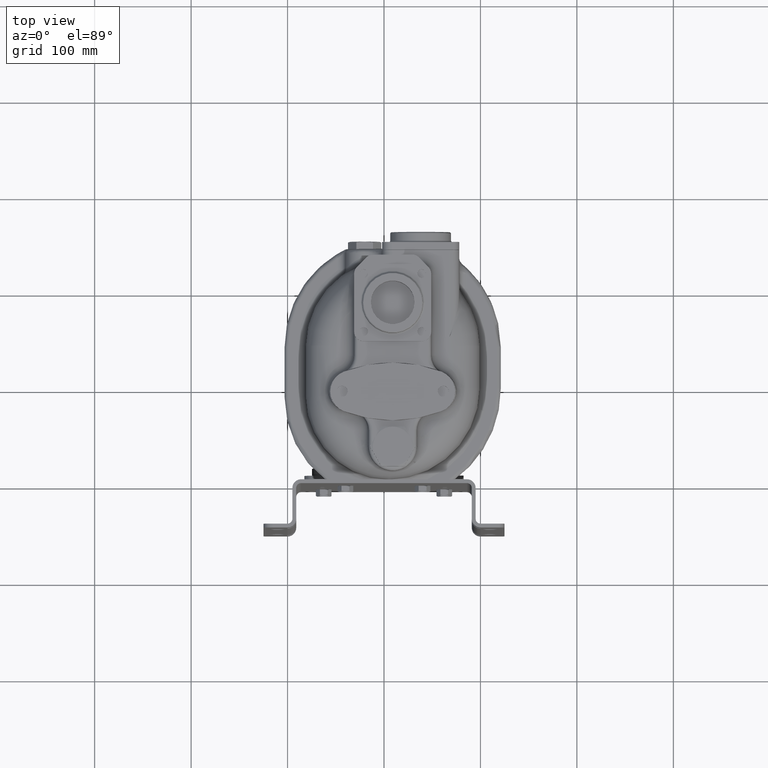
[diagram: clean part render]
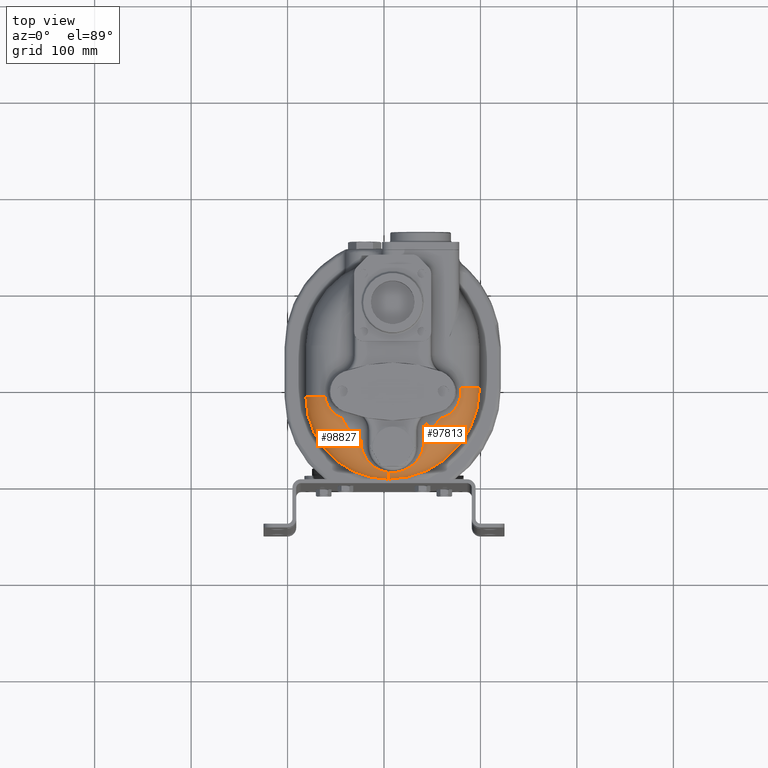
[diagram: same view with one multi-face feature highlighted, each face labeled with its STEP entity id]
A machine part, top view. The highlighted faces form ONE feature: a constant-radius fillet chain: 2 tangent blend faces with common blend radius 32 mm. The faces share edges in the B-rep.
Their STEP definitions:
[1] entity #98827 (Torus):
#37631=CARTESIAN_POINT('',(4.5E0,8.55E1,1.688E2));
#37632=DIRECTION('',(0.E0,0.E0,1.E0));
#37633=DIRECTION('',(-1.E0,0.E0,0.E0));
#37634=AXIS2_PLACEMENT_3D('',#37631,#37632,#37633);
#38514=CARTESIAN_POINT('',(4.5E0,3.2E1,1.688E2));
#38515=DIRECTION('',(1.E0,0.E0,0.E0));
#38516=DIRECTION('',(0.E0,-7.922935519139E-1,6.101400885007E-1));
#38517=AXIS2_PLACEMENT_3D('',#38514,#38515,#38516);
#38576=CARTESIAN_POINT('',(4.5E0,6.646606338756E0,1.883244828320E2));
#39444=CARTESIAN_POINT('',(-2.340488293308E1,3.409626828118E1,
2.004086144036E2));
#39445=CARTESIAN_POINT('',(-2.343960512505E1,3.448498931119E1,
2.004599268214E2));
#39446=CARTESIAN_POINT('',(-2.351111410970E1,3.527308822174E1,
2.005531810197E2));
#39447=CARTESIAN_POINT('',(-2.362439843878E1,3.648183982251E1,
2.006632946977E2));
#39448=CARTESIAN_POINT('',(-2.374512012553E1,3.772794714728E1,
2.007431654614E2));
#39449=CARTESIAN_POINT('',(-2.387124000345E1,3.898653739584E1,
2.007901716077E2));
#39450=CARTESIAN_POINT('',(-2.395674450535E1,3.981204824324E1,
2.007999999792E2));
#39451=CARTESIAN_POINT('',(-2.4E1,4.022307430910E1,2.008E2));
#39453=CARTESIAN_POINT('',(4.5E0,6.646606338756E0,1.883244828320E2));
#39454=CARTESIAN_POINT('',(4.208053975118E0,6.681339399376E0,1.883695852148E2));
#39455=CARTESIAN_POINT('',(3.621907841800E0,6.758942432230E0,1.884656489070E2));
#39456=CARTESIAN_POINT('',(2.736764610061E0,6.900431346400E0,1.886272240470E2));
#39457=CARTESIAN_POINT('',(1.845985310426E0,7.067776185940E0,1.888062172408E2));
#39458=CARTESIAN_POINT('',(9.499303146669E-1,7.261789756213E0,
1.890025165593E2));
#39459=CARTESIAN_POINT('',(4.926796401304E-2,7.483256003622E0,
1.892158956522E2));
#39460=CARTESIAN_POINT('',(-8.551400261819E-1,7.732925512916E0,
1.894460225426E2));
#39461=CARTESIAN_POINT('',(-1.762186949126E0,8.011476749405E0,
1.896924355026E2));
#39462=CARTESIAN_POINT('',(-2.670538746342E0,8.319488704693E0,
1.899545348918E2));
#39463=CARTESIAN_POINT('',(-3.578649430679E0,8.657414036860E0,
1.902315779335E2));
#39464=CARTESIAN_POINT('',(-4.484785317012E0,9.025555486930E0,
1.905226789423E2));
#39465=CARTESIAN_POINT('',(-5.387057901507E0,9.424047783624E0,
1.908268157920E2));
#39466=CARTESIAN_POINT('',(-6.283462298901E0,9.852845641807E0,
1.911428419971E2));
#39467=CARTESIAN_POINT('',(-7.171916648177E0,1.031171703656E1,
1.914695027345E2));
#39468=CARTESIAN_POINT('',(-8.050306169326E0,1.080024443742E1,
1.918054556573E2));
#39469=CARTESIAN_POINT('',(-8.916523771864E0,1.131783127675E1,
1.921492934880E2));
#39470=CARTESIAN_POINT('',(-9.768506599019E0,1.186371279767E1,
1.924995671041E2));
#39471=CARTESIAN_POINT('',(-1.060426974422E1,1.243697195930E1,
1.928548089861E2));
#39472=CARTESIAN_POINT('',(-1.142193222090E1,1.303655675488E1,
1.932135543202E2));
#39473=CARTESIAN_POINT('',(-1.221973703413E1,1.366129884245E1,
1.935743597608E2));
#39474=CARTESIAN_POINT('',(-1.299606502273E1,1.430993210126E1,
1.939358191628E2));
#39475=CARTESIAN_POINT('',(-1.374944349212E1,1.498111061448E1,
1.942965763089E2));
#39476=CARTESIAN_POINT('',(-1.447855008481E1,1.567342524373E1,
1.946553345497E2));
#39477=CARTESIAN_POINT('',(-1.518221334202E1,1.638541897860E1,
1.950108638772E2));
#39478=CARTESIAN_POINT('',(-1.585941032520E1,1.711560054718E1,
1.953620055557E2));
#39479=CARTESIAN_POINT('',(-1.650926222436E1,1.786245640395E1,
1.957076747692E2));
#39480=CARTESIAN_POINT('',(-1.713102869208E1,1.862446130082E1,
1.960468617184E2));
#39481=CARTESIAN_POINT('',(-1.772410144560E1,1.940008768014E1,
1.963786315496E2));
#39482=CARTESIAN_POINT('',(-1.828799728957E1,2.018781379320E1,
1.967021232999E2));
#39483=CARTESIAN_POINT('',(-1.882235099792E1,2.098613089004E1,
1.970165481992E2));
#39484=CARTESIAN_POINT('',(-1.932690821647E1,2.179354963390E1,
1.973211875253E2));
#39485=CARTESIAN_POINT('',(-1.980151846516E1,2.260860584158E1,
1.976153901539E2));
#39486=CARTESIAN_POINT('',(-2.024612827675E1,2.342986561082E1,
1.978985698991E2));
#39487=CARTESIAN_POINT('',(-2.066077450508E1,2.425592992057E1,
1.981702027367E2));
#39488=CARTESIAN_POINT('',(-2.104557794157E1,2.508543907998E1,
1.984298240585E2));
#39489=CARTESIAN_POINT('',(-2.140073684162E1,2.591707626366E1,
1.986770257307E2));
#39490=CARTESIAN_POINT('',(-2.172652078988E1,2.674957104365E1,
1.989114532786E2));
#39491=CARTESIAN_POINT('',(-2.202326460588E1,2.758170237716E1,
1.991328030175E2));
#39492=CARTESIAN_POINT('',(-2.229136311668E1,2.841230344684E1,
1.993408197782E2));
#39493=CARTESIAN_POINT('',(-2.253126510904E1,2.924026545303E1,
1.995352941155E2));
#39494=CARTESIAN_POINT('',(-2.274346513766E1,3.006452975472E1,
1.997160574214E2));
#39495=CARTESIAN_POINT('',(-2.292850202702E1,3.088411052459E1,
1.998829829943E2));
#39496=CARTESIAN_POINT('',(-2.308694269558E1,3.169803304554E1,
2.000359724664E2));
#39497=CARTESIAN_POINT('',(-2.321940623760E1,3.250552421985E1,
2.001749843939E2));
#39498=CARTESIAN_POINT('',(-2.332648430220E1,3.330549693625E1,
2.002999487674E2));
#39499=CARTESIAN_POINT('',(-2.338141947595E1,3.383360231311E1,
2.003739417001E2));
#39500=CARTESIAN_POINT('',(-2.340488293308E1,3.409626828118E1,
2.004086144036E2));
#39502=CARTESIAN_POINT('',(-4.9E1,8.55E1,1.688E2));
#39503=DIRECTION('',(0.E0,-1.E0,0.E0));
#39504=DIRECTION('',(-3.909006802718E-1,0.E0,9.204328645605E-1));
#39505=AXIS2_PLACEMENT_3D('',#39502,#39503,#39504);
#39507=CARTESIAN_POINT('',(-4.398532546091E1,6.288533186253E1,2.008E2));
#39508=CARTESIAN_POINT('',(-4.423158041699E1,6.297889598919E1,
2.007999999891E2));
#39509=CARTESIAN_POINT('',(-4.472381677059E1,6.317463932069E1,
2.007968391670E2));
#39510=CARTESIAN_POINT('',(-4.546082009258E1,6.349455011862E1,
2.007829057286E2));
#39511=CARTESIAN_POINT('',(-4.619557471296E1,6.384105687252E1,
2.007600785937E2));
#39512=CARTESIAN_POINT('',(-4.692665484021E1,6.421417350535E1,
2.007286980387E2));
#39513=CARTESIAN_POINT('',(-4.765291995562E1,6.461398360430E1,
2.006891250920E2));
#39514=CARTESIAN_POINT('',(-4.837307078277E1,6.504043396869E1,
2.006417532461E2));
#39515=CARTESIAN_POINT('',(-4.908584301321E1,6.549341963517E1,
2.005870019966E2));
#39516=CARTESIAN_POINT('',(-4.978994727082E1,6.597275020428E1,
2.005253181406E2));
#39517=CARTESIAN_POINT('',(-5.048409626111E1,6.647815863516E1,
2.004571736899E2));
#39518=CARTESIAN_POINT('',(-5.116700670282E1,6.700929864112E1,
2.003830643462E2));
#39519=CARTESIAN_POINT('',(-5.183740702355E1,6.756574526711E1,
2.003035075385E2));
#39520=CARTESIAN_POINT('',(-5.249404469784E1,6.814699648403E1,
2.002190400796E2));
#39521=CARTESIAN_POINT('',(-5.313569281470E1,6.875247493862E1,
2.001302156492E2));
#39522=CARTESIAN_POINT('',(-5.376115699165E1,6.938153095877E1,
2.000376019631E2));
#39523=CARTESIAN_POINT('',(-5.436928174525E1,7.003344613757E1,
1.999417777570E2));
#39524=CARTESIAN_POINT('',(-5.495895655935E1,7.070743774606E1,
1.998433295838E2));
#39525=CARTESIAN_POINT('',(-5.552912142386E1,7.140266381176E1,
1.997428484840E2));
#39526=CARTESIAN_POINT('',(-5.607877181149E1,7.211822885628E1,
1.996409265688E2));
#39527=CARTESIAN_POINT('',(-5.660696294313E1,7.285319012766E1,
1.995381535795E2));
#39528=CARTESIAN_POINT('',(-5.711281338798E1,7.360656439870E1,
1.994351134533E2));
#39529=CARTESIAN_POINT('',(-5.759550762349E1,7.437733474232E1,
1.993323810132E2));
#39530=CARTESIAN_POINT('',(-5.805429826343E1,7.516445829863E1,
1.992305186820E2));
#39531=CARTESIAN_POINT('',(-5.848850727944E1,7.596687420583E1,
1.991300733812E2));
#39532=CARTESIAN_POINT('',(-5.889752512509E1,7.678350919574E1,
1.990315739431E2));
#39533=CARTESIAN_POINT('',(-5.928081011713E1,7.761328456327E1,
1.989355285620E2));
#39534=CARTESIAN_POINT('',(-5.963788729500E1,7.845512367940E1,
1.988424224441E2));
#39535=CARTESIAN_POINT('',(-5.996834571960E1,7.930795745431E1,
1.987527159718E2));
#39536=CARTESIAN_POINT('',(-6.027183544165E1,8.017072975949E1,
1.986668431062E2));
#39537=CARTESIAN_POINT('',(-6.054806365040E1,8.104240148777E1,
1.985852102150E2));
#39538=CARTESIAN_POINT('',(-6.079679174111E1,8.192195835782E1,
1.985081947330E2));
#39539=CARTESIAN_POINT('',(-6.101782722803E1,8.280840182747E1,
1.984361457423E2));
#39540=CARTESIAN_POINT('',(-6.121102678326E1,8.370077824364E1,
1.983693809991E2));
#39541=CARTESIAN_POINT('',(-6.137627612270E1,8.459812411285E1,
1.983081920872E2));
#39542=CARTESIAN_POINT('',(-6.146775674843E1,8.519901474589E1,
1.982712916603E2));
#39543=CARTESIAN_POINT('',(-6.150882176870E1,8.55E1,1.982538516659E2));
#39545=CARTESIAN_POINT('',(4.5E0,8.55E1,2.008E2));
#39546=DIRECTION('',(0.E0,0.E0,1.E0));
#39547=DIRECTION('',(-9.062677656248E-1,-4.227040773277E-1,0.E0));
#39548=AXIS2_PLACEMENT_3D('',#39545,#39546,#39547);
#50729=CARTESIAN_POINT('',(4.5E0,0.E0,1.688E2));
#50730=VERTEX_POINT('',#50729);
#50731=CARTESIAN_POINT('',(-8.1E1,8.55E1,1.688E2));
#50732=VERTEX_POINT('',#50731);
#50739=CARTESIAN_POINT('',(-4.398532546093E1,6.288533186297E1,2.008E2));
#50740=CARTESIAN_POINT('',(-2.399999999962E1,4.022307430907E1,2.008E2));
#50741=VERTEX_POINT('',#50739);
#50742=VERTEX_POINT('',#50740);
#50859=VERTEX_POINT('',#38576);
#50860=VERTEX_POINT('',#39500);
#50869=VERTEX_POINT('',#39543);
#98809=CARTESIAN_POINT('',(4.5E0,8.55E1,1.688E2));
#98810=DIRECTION('',(0.E0,0.E0,-1.E0));
#98811=DIRECTION('',(-9.999999673648E-1,2.554806989755E-4,0.E0));
#98812=AXIS2_PLACEMENT_3D('',#98809,#98810,#98811);
#98813=TOROIDAL_SURFACE('',#98812,5.35E1,3.2E1);
#98815=ORIENTED_EDGE('',*,*,#98814,.T.);
#98817=ORIENTED_EDGE('',*,*,#98816,.F.);
#98818=ORIENTED_EDGE('',*,*,#98802,.F.);
#98819=ORIENTED_EDGE('',*,*,#97805,.T.);
#98820=ORIENTED_EDGE('',*,*,#96459,.F.);
#98822=ORIENTED_EDGE('',*,*,#98821,.F.);
#98824=ORIENTED_EDGE('',*,*,#98823,.F.);
#98825=EDGE_LOOP('',(#98815,#98817,#98818,#98819,#98820,#98822,#98824));
#98826=FACE_OUTER_BOUND('',#98825,.F.);
#98827=ADVANCED_FACE('',(#98826),#98813,.T.);
#37635=CIRCLE('',#37634,8.55E1);
#38518=CIRCLE('',#38517,3.2E1);
#39452=B_SPLINE_CURVE_WITH_KNOTS('',3,(#39444,#39445,#39446,#39447,#39448,
#39449,#39450,#39451),.UNSPECIFIED.,.F.,.F.,(4,1,1,1,1,4),(0.E0,2.E-1,4.E-1,
6.E-1,8.E-1,1.E0),.UNSPECIFIED.);
#39501=B_SPLINE_CURVE_WITH_KNOTS('',3,(#39453,#39454,#39455,#39456,#39457,
#39458,#39459,#39460,#39461,#39462,#39463,#39464,#39465,#39466,#39467,#39468,
#39469,#39470,#39471,#39472,#39473,#39474,#39475,#39476,#39477,#39478,#39479,
#39480,#39481,#39482,#39483,#39484,#39485,#39486,#39487,#39488,#39489,#39490,
#39491,#39492,#39493,#39494,#39495,#39496,#39497,#39498,#39499,#39500),
.UNSPECIFIED.,.F.,.F.,(4,1,1,1,1,1,1,1,1,1,1,1,1,1,1,1,1,1,1,1,1,1,1,1,1,1,1,1,
1,1,1,1,1,1,1,1,1,1,1,1,1,1,1,1,1,4),(0.E0,2.222222222222E-2,4.444444444444E-2,
6.666666666667E-2,8.888888888889E-2,1.111111111111E-1,1.333333333333E-1,
1.555555555556E-1,1.777777777778E-1,2.E-1,2.222222222222E-1,2.444444444444E-1,
2.666666666667E-1,2.888888888889E-1,3.111111111111E-1,3.333333333333E-1,
3.555555555556E-1,3.777777777778E-1,4.E-1,4.222222222222E-1,4.444444444444E-1,
4.666666666667E-1,4.888888888889E-1,5.111111111111E-1,5.333333333333E-1,
5.555555555556E-1,5.777777777778E-1,6.E-1,6.222222222222E-1,6.444444444444E-1,
6.666666666667E-1,6.888888888889E-1,7.111111111111E-1,7.333333333333E-1,
7.555555555556E-1,7.777777777778E-1,8.E-1,8.222222222222E-1,8.444444444444E-1,
8.666666666667E-1,8.888888888889E-1,9.111111111111E-1,9.333333333333E-1,
9.555555555556E-1,9.777777777778E-1,1.E0),.UNSPECIFIED.);
#39506=CIRCLE('',#39505,3.2E1);
#39544=B_SPLINE_CURVE_WITH_KNOTS('',3,(#39507,#39508,#39509,#39510,#39511,
#39512,#39513,#39514,#39515,#39516,#39517,#39518,#39519,#39520,#39521,#39522,
#39523,#39524,#39525,#39526,#39527,#39528,#39529,#39530,#39531,#39532,#39533,
#39534,#39535,#39536,#39537,#39538,#39539,#39540,#39541,#39542,#39543),
.UNSPECIFIED.,.F.,.F.,(4,1,1,1,1,1,1,1,1,1,1,1,1,1,1,1,1,1,1,1,1,1,1,1,1,1,1,1,
1,1,1,1,1,1,4),(0.E0,2.941176470588E-2,5.882352941176E-2,8.823529411765E-2,
1.176470588235E-1,1.470588235294E-1,1.764705882353E-1,2.058823529412E-1,
2.352941176471E-1,2.647058823529E-1,2.941176470588E-1,3.235294117647E-1,
3.529411764706E-1,3.823529411765E-1,4.117647058824E-1,4.411764705882E-1,
4.705882352941E-1,5.E-1,5.294117647059E-1,5.588235294118E-1,5.882352941176E-1,
6.176470588235E-1,6.470588235294E-1,6.764705882353E-1,7.058823529412E-1,
7.352941176471E-1,7.647058823529E-1,7.941176470588E-1,8.235294117647E-1,
8.529411764706E-1,8.823529411765E-1,9.117647058824E-1,9.411764705882E-1,
9.705882352941E-1,1.E0),.UNSPECIFIED.);
#39549=CIRCLE('',#39548,5.35E1);
#96459=EDGE_CURVE('',#50732,#50730,#37635,.T.);
#97805=EDGE_CURVE('',#50859,#50730,#38518,.T.);
#98802=EDGE_CURVE('',#50859,#50860,#39501,.T.);
#98814=EDGE_CURVE('',#50741,#50742,#39549,.T.);
#98816=EDGE_CURVE('',#50860,#50742,#39452,.T.);
#98821=EDGE_CURVE('',#50869,#50732,#39506,.T.);
#98823=EDGE_CURVE('',#50741,#50869,#39544,.T.);
[2] entity #97813 (Torus):
#37617=CARTESIAN_POINT('',(4.5E0,9.45E1,1.688E2));
#37618=DIRECTION('',(0.E0,0.E0,1.E0));
#37619=DIRECTION('',(0.E0,-1.E0,0.E0));
#37620=AXIS2_PLACEMENT_3D('',#37617,#37618,#37619);
#38218=CARTESIAN_POINT('',(7.950882176870E1,9.45E1,1.982538516659E2));
#38220=CARTESIAN_POINT('',(6.7E1,9.45E1,1.688E2));
#38221=DIRECTION('',(0.E0,1.E0,0.E0));
#38222=DIRECTION('',(3.909006802718E-1,0.E0,9.204328645605E-1));
#38223=AXIS2_PLACEMENT_3D('',#38220,#38221,#38222);
#38463=CARTESIAN_POINT('',(7.950882176870E1,9.45E1,1.982538516659E2));
#38464=CARTESIAN_POINT('',(7.955066272830E1,9.419165268353E1,1.982360821384E2));
#38465=CARTESIAN_POINT('',(7.962469101310E1,9.357386992541E1,1.982028182927E2));
#38466=CARTESIAN_POINT('',(7.970676921163E1,9.264466628856E1,1.981599693011E2));
#38467=CARTESIAN_POINT('',(7.975987964496E1,9.171385835118E1,1.981243621178E2));
#38468=CARTESIAN_POINT('',(7.978404457221E1,9.078238643893E1,1.980961562032E2));
#38469=CARTESIAN_POINT('',(7.977930856525E1,8.985098249919E1,1.980754700565E2));
#38470=CARTESIAN_POINT('',(7.974572082504E1,8.892046230423E1,1.980623925929E2));
#38471=CARTESIAN_POINT('',(7.968333915617E1,8.799158126155E1,1.980569785188E2));
#38472=CARTESIAN_POINT('',(7.959222707575E1,8.706510493365E1,1.980592506636E2));
#38473=CARTESIAN_POINT('',(7.947245390329E1,8.614179055651E1,1.980691994825E2));
#38474=CARTESIAN_POINT('',(7.932409564446E1,8.522240183708E1,1.980867831867E2));
#38475=CARTESIAN_POINT('',(7.914723678376E1,8.430771206038E1,1.981119274135E2));
#38476=CARTESIAN_POINT('',(7.894197306474E1,8.339851031574E1,1.981445247738E2));
#38477=CARTESIAN_POINT('',(7.870841512321E1,8.249560618946E1,1.981844342191E2));
#38478=CARTESIAN_POINT('',(7.844669295555E1,8.159983417588E1,1.982314802872E2));
#38479=CARTESIAN_POINT('',(7.815696110747E1,8.071205721802E1,1.982854522694E2));
#38480=CARTESIAN_POINT('',(7.783940443564E1,7.983316926467E1,1.983461033702E2));
#38481=CARTESIAN_POINT('',(7.749424434162E1,7.896409683977E1,1.984131499182E2));
#38482=CARTESIAN_POINT('',(7.712174526115E1,7.810579936866E1,1.984862707163E2));
#38483=CARTESIAN_POINT('',(7.672222133374E1,7.725926843953E1,1.985651065868E2));
#38484=CARTESIAN_POINT('',(7.629604296661E1,7.642552569243E1,1.986492602088E2));
#38485=CARTESIAN_POINT('',(7.584364311749E1,7.560561940625E1,1.987382963171E2));
#38486=CARTESIAN_POINT('',(7.536552311389E1,7.480061983997E1,1.988317423252E2));
#38487=CARTESIAN_POINT('',(7.486225780364E1,7.401161336307E1,1.989290894312E2));
#38488=CARTESIAN_POINT('',(7.433449977506E1,7.323969536398E1,1.990297942607E2));
#38489=CARTESIAN_POINT('',(7.378298258969E1,7.248596226603E1,1.991332810527E2));
#38490=CARTESIAN_POINT('',(7.320852272886E1,7.175150258118E1,1.992389444213E2));
#38491=CARTESIAN_POINT('',(7.261202023921E1,7.103738739375E1,1.993461526610E2));
#38492=CARTESIAN_POINT('',(7.199445803127E1,7.034466049613E1,1.994542515549E2));
#38493=CARTESIAN_POINT('',(7.135689967721E1,6.967432828526E1,1.995625686527E2));
#38494=CARTESIAN_POINT('',(7.070048578980E1,6.902734977981E1,1.996704179332E2));
#38495=CARTESIAN_POINT('',(7.002642896945E1,6.840462692857E1,1.997771047716E2));
#38496=CARTESIAN_POINT('',(6.933600748699E1,6.780699554121E1,1.998819311012E2));
#38497=CARTESIAN_POINT('',(6.863055780640E1,6.723521701596E1,1.999842006657E2));
#38498=CARTESIAN_POINT('',(6.791146604843E1,6.668997101608E1,2.000832242632E2));
#38499=CARTESIAN_POINT('',(6.718015870059E1,6.617184934448E1,2.001783248519E2));
#38500=CARTESIAN_POINT('',(6.643809258295E1,6.568135099644E1,2.002688424446E2));
#38501=CARTESIAN_POINT('',(6.568674458315E1,6.521887867801E1,2.003541386548E2));
#38502=CARTESIAN_POINT('',(6.492760079415E1,6.478473646923E1,2.004336008804E2));
#38503=CARTESIAN_POINT('',(6.416214646171E1,6.437912935034E1,2.005066459208E2));
#38504=CARTESIAN_POINT('',(6.339185459246E1,6.400216318887E1,2.005727232298E2));
#38505=CARTESIAN_POINT('',(6.261817694456E1,6.365384733522E1,2.006313173311E2));
#38506=CARTESIAN_POINT('',(6.184253444584E1,6.333409694532E1,2.006819499990E2));
#38507=CARTESIAN_POINT('',(6.106629319136E1,6.304273338436E1,2.007241818672E2));
#38508=CARTESIAN_POINT('',(6.029082116422E1,6.277950898915E1,2.007576110682E2));
#38509=CARTESIAN_POINT('',(5.951729108667E1,6.254405688794E1,2.007818790095E2));
#38510=CARTESIAN_POINT('',(5.874716034270E1,6.233603530163E1,2.007966575080E2));
#38511=CARTESIAN_POINT('',(5.823654885236E1,6.221526353818E1,2.007999999876E2));
#38512=CARTESIAN_POINT('',(5.798201198605E1,6.215924561878E1,2.008E2));
#38514=CARTESIAN_POINT('',(4.5E0,3.2E1,1.688E2));
#38515=DIRECTION('',(1.E0,0.E0,0.E0));
#38516=DIRECTION('',(0.E0,-7.922935519139E-1,6.101400885007E-1));
#38517=AXIS2_PLACEMENT_3D('',#38514,#38515,#38516);
#38519=CARTESIAN_POINT('',(4.100759280331E1,3.462754780257E1,1.998782795164E2));
#38520=CARTESIAN_POINT('',(4.098273073244E1,3.435453481928E1,1.998242651312E2));
#38521=CARTESIAN_POINT('',(4.092445975322E1,3.380543917601E1,1.997114442860E2));
#38522=CARTESIAN_POINT('',(4.081067729123E1,3.297312149941E1,1.995278408559E2));
#38523=CARTESIAN_POINT('',(4.066970411291E1,3.213240866567E1,1.993298092233E2));
#38524=CARTESIAN_POINT('',(4.050087574382E1,3.128454806171E1,1.991175337296E2));
#38525=CARTESIAN_POINT('',(4.030350617873E1,3.043044677109E1,1.988911557349E2));
#38526=CARTESIAN_POINT('',(4.007697054557E1,2.957121670207E1,1.986508975421E2));
#38527=CARTESIAN_POINT('',(3.982069404238E1,2.870802289459E1,1.983970345590E2));
#38528=CARTESIAN_POINT('',(3.953416002919E1,2.784210157530E1,1.981299023291E2));
#38529=CARTESIAN_POINT('',(3.921692222996E1,2.697476638440E1,1.978499038605E2));
#38530=CARTESIAN_POINT('',(3.886861085986E1,2.610739771239E1,1.975575112905E2));
#38531=CARTESIAN_POINT('',(3.848894338983E1,2.524144432100E1,1.972532715590E2));
#38532=CARTESIAN_POINT('',(3.807773330920E1,2.437841746024E1,1.969378098253E2));
#38533=CARTESIAN_POINT('',(3.763490040012E1,2.351988761818E1,1.966118337929E2));
#38534=CARTESIAN_POINT('',(3.716048097308E1,2.266747936549E1,1.962761374325E2));
#38535=CARTESIAN_POINT('',(3.665463859313E1,2.182286575427E1,1.959316044838E2));
#38536=CARTESIAN_POINT('',(3.611767502106E1,2.098776159060E1,1.955792113792E2));
#38537=CARTESIAN_POINT('',(3.555004138205E1,2.016391568777E1,1.952200294665E2));
#38538=CARTESIAN_POINT('',(3.495234902304E1,1.935310140373E1,1.948552260300E2));
#38539=CARTESIAN_POINT('',(3.432537990792E1,1.855710558972E1,1.944860638815E2));
#38540=CARTESIAN_POINT('',(3.367009570085E1,1.777771525977E1,1.941138988811E2));
#38541=CARTESIAN_POINT('',(3.298764496401E1,1.701670199292E1,1.937401749879E2));
#38542=CARTESIAN_POINT('',(3.227936706407E1,1.627580336391E1,1.933664160449E2));
#38543=CARTESIAN_POINT('',(3.154679188513E1,1.555670173333E1,1.929942139580E2));
#38544=CARTESIAN_POINT('',(3.079163395036E1,1.486100038756E1,1.926252127905E2));
#38545=CARTESIAN_POINT('',(3.001577908430E1,1.419019704750E1,1.922610883377E2));
#38546=CARTESIAN_POINT('',(2.922126363872E1,1.354565663972E1,1.919035238878E2));
#38547=CARTESIAN_POINT('',(2.841024377195E1,1.292858305311E1,1.915541819238E2));
#38548=CARTESIAN_POINT('',(2.758495739083E1,1.233999377963E1,1.912146741010E2));
#38549=CARTESIAN_POINT('',(2.674767747669E1,1.178069750528E1,1.908865300820E2));
#38550=CARTESIAN_POINT('',(2.590066075376E1,1.125127828918E1,1.905711681448E2));
#38551=CARTESIAN_POINT('',(2.504609504265E1,1.075208807145E1,1.902698697538E2));
#38552=CARTESIAN_POINT('',(2.418604764164E1,1.028324781988E1,1.899837595523E2));
#38553=CARTESIAN_POINT('',(2.332241754275E1,9.844657361567E0,1.897137920634E2));
#38554=CARTESIAN_POINT('',(2.245689363583E1,9.436013368905E0,1.894607458920E2));
#38555=CARTESIAN_POINT('',(2.159093011443E1,9.056837960173E0,1.892252278354E2));
#38556=CARTESIAN_POINT('',(2.072571644842E1,8.706505475819E0,1.890076796604E2));
#38557=CARTESIAN_POINT('',(1.986219364511E1,8.384287429293E0,1.888084000716E2));
#38558=CARTESIAN_POINT('',(1.900106863820E1,8.089388929339E0,1.886275647953E2));
#38559=CARTESIAN_POINT('',(1.814276567223E1,7.820961835703E0,1.884652353912E2));
#38560=CARTESIAN_POINT('',(1.728746105172E1,7.578147193316E0,1.883213889434E2));
#38561=CARTESIAN_POINT('',(1.643512266138E1,7.360109979230E0,1.881959444864E2));
#38562=CARTESIAN_POINT('',(1.558552794819E1,7.166061994336E0,1.880887831066E2));
#38563=CARTESIAN_POINT('',(1.473829230855E1,6.995283602995E0,1.879997676052E2));
#38564=CARTESIAN_POINT('',(1.389289412065E1,6.847140494480E0,1.879287588762E2));
#38565=CARTESIAN_POINT('',(1.304870081298E1,6.721097296162E0,1.878756296788E2));
#38566=CARTESIAN_POINT('',(1.220499218565E1,6.616727710684E0,1.878402753315E2));
#38567=CARTESIAN_POINT('',(1.136098457604E1,6.533722195197E0,1.878226215887E2));
#38568=CARTESIAN_POINT('',(1.051585229795E1,6.471893328507E0,1.878226300101E2));
#38569=CARTESIAN_POINT('',(9.668748967409E0,6.431179273683E0,1.878403006283E2));
#38570=CARTESIAN_POINT('',(8.818832661618E0,6.411645287633E0,1.878756716795E2));
#38571=CARTESIAN_POINT('',(7.965275219711E0,6.413483774668E0,1.879288179831E2));
#38572=CARTESIAN_POINT('',(7.107325959734E0,6.437011240415E0,1.879998423724E2));
#38573=CARTESIAN_POINT('',(6.244286005112E0,6.482664179255E0,1.880888709441E2));
#38574=CARTESIAN_POINT('',(5.375577820999E0,6.550988629575E0,1.881960363581E2));
#38575=CARTESIAN_POINT('',(4.792428228555E0,6.612081197684E0,1.882796504280E2));
#38576=CARTESIAN_POINT('',(4.5E0,6.646606338756E0,1.883244828320E2));
#38578=CARTESIAN_POINT('',(4.2E1,4.449999999981E1,2.008E2));
#38579=CARTESIAN_POINT('',(4.195258669380E1,4.406931901115E1,2.007999999826E2));
#38580=CARTESIAN_POINT('',(4.185872397952E1,4.320703289099E1,2.007906372637E2));
#38581=CARTESIAN_POINT('',(4.172077335230E1,4.190969670528E1,2.007469544743E2));
#38582=CARTESIAN_POINT('',(4.158636644170E1,4.061475247759E1,2.006722898660E2));
#38583=CARTESIAN_POINT('',(4.145810982264E1,3.934839699774E1,2.005678805593E2));
#38584=CARTESIAN_POINT('',(4.133668060605E1,3.812007234908E1,2.004358459028E2));
#38585=CARTESIAN_POINT('',(4.122123408442E1,3.692401700567E1,2.002769566259E2));
#38586=CARTESIAN_POINT('',(4.111142420318E1,3.575914163229E1,2.000922234435E2));
#38587=CARTESIAN_POINT('',(4.104163311801E1,3.500135775868E1,1.999522361855E2));
#38588=CARTESIAN_POINT('',(4.100759280331E1,3.462754780257E1,1.998782795164E2));
#38590=CARTESIAN_POINT('',(4.5E0,9.45E1,2.008E2));
#38591=DIRECTION('',(0.E0,0.E0,1.E0));
#38592=DIRECTION('',(5.999999999942E-1,-8.000000000044E-1,0.E0));
#38593=AXIS2_PLACEMENT_3D('',#38590,#38591,#38592);
#50725=CARTESIAN_POINT('',(9.9E1,9.45E1,1.688E2));
#50727=VERTEX_POINT('',#50725);
#50729=CARTESIAN_POINT('',(4.5E0,0.E0,1.688E2));
#50730=VERTEX_POINT('',#50729);
#50735=CARTESIAN_POINT('',(4.199999999964E1,4.449999999973E1,2.008E2));
#50736=CARTESIAN_POINT('',(5.798201198611E1,6.215924561922E1,2.008E2));
#50737=VERTEX_POINT('',#50735);
#50738=VERTEX_POINT('',#50736);
#50849=VERTEX_POINT('',#38218);
#50857=VERTEX_POINT('',#38588);
#50859=VERTEX_POINT('',#38576);
#97795=CARTESIAN_POINT('',(4.5E0,9.45E1,1.688E2));
#97796=DIRECTION('',(0.E0,0.E0,-1.E0));
#97797=DIRECTION('',(-2.311492042904E-4,-9.999999732850E-1,0.E0));
#97798=AXIS2_PLACEMENT_3D('',#97795,#97796,#97797);
#97799=TOROIDAL_SURFACE('',#97798,6.25E1,3.2E1);
#97801=ORIENTED_EDGE('',*,*,#97800,.T.);
#97802=ORIENTED_EDGE('',*,*,#97789,.F.);
#97803=ORIENTED_EDGE('',*,*,#97282,.T.);
#97804=ORIENTED_EDGE('',*,*,#96443,.F.);
#97806=ORIENTED_EDGE('',*,*,#97805,.F.);
#97808=ORIENTED_EDGE('',*,*,#97807,.F.);
#97810=ORIENTED_EDGE('',*,*,#97809,.F.);
#97811=EDGE_LOOP('',(#97801,#97802,#97803,#97804,#97806,#97808,#97810));
#97812=FACE_OUTER_BOUND('',#97811,.F.);
#97813=ADVANCED_FACE('',(#97812),#97799,.T.);
#37621=CIRCLE('',#37620,9.45E1);
#38224=CIRCLE('',#38223,3.2E1);
#38513=B_SPLINE_CURVE_WITH_KNOTS('',3,(#38463,#38464,#38465,#38466,#38467,
#38468,#38469,#38470,#38471,#38472,#38473,#38474,#38475,#38476,#38477,#38478,
#38479,#38480,#38481,#38482,#38483,#38484,#38485,#38486,#38487,#38488,#38489,
#38490,#38491,#38492,#38493,#38494,#38495,#38496,#38497,#38498,#38499,#38500,
#38501,#38502,#38503,#38504,#38505,#38506,#38507,#38508,#38509,#38510,#38511,
#38512),.UNSPECIFIED.,.F.,.F.,(4,1,1,1,1,1,1,1,1,1,1,1,1,1,1,1,1,1,1,1,1,1,1,1,
1,1,1,1,1,1,1,1,1,1,1,1,1,1,1,1,1,1,1,1,1,1,1,4),(0.E0,2.127659574468E-2,
4.255319148936E-2,6.382978723404E-2,8.510638297872E-2,1.063829787234E-1,
1.276595744681E-1,1.489361702128E-1,1.702127659574E-1,1.914893617021E-1,
2.127659574468E-1,2.340425531915E-1,2.553191489362E-1,2.765957446809E-1,
2.978723404255E-1,3.191489361702E-1,3.404255319149E-1,3.617021276596E-1,
3.829787234043E-1,4.042553191489E-1,4.255319148936E-1,4.468085106383E-1,
4.680851063830E-1,4.893617021277E-1,5.106382978723E-1,5.319148936170E-1,
5.531914893617E-1,5.744680851064E-1,5.957446808511E-1,6.170212765957E-1,
6.382978723404E-1,6.595744680851E-1,6.808510638298E-1,7.021276595745E-1,
7.234042553191E-1,7.446808510638E-1,7.659574468085E-1,7.872340425532E-1,
8.085106382979E-1,8.297872340426E-1,8.510638297872E-1,8.723404255319E-1,
8.936170212766E-1,9.148936170213E-1,9.361702127660E-1,9.574468085106E-1,
9.787234042553E-1,1.E0),.UNSPECIFIED.);
#38518=CIRCLE('',#38517,3.2E1);
#38577=B_SPLINE_CURVE_WITH_KNOTS('',3,(#38519,#38520,#38521,#38522,#38523,
#38524,#38525,#38526,#38527,#38528,#38529,#38530,#38531,#38532,#38533,#38534,
#38535,#38536,#38537,#38538,#38539,#38540,#38541,#38542,#38543,#38544,#38545,
#38546,#38547,#38548,#38549,#38550,#38551,#38552,#38553,#38554,#38555,#38556,
#38557,#38558,#38559,#38560,#38561,#38562,#38563,#38564,#38565,#38566,#38567,
#38568,#38569,#38570,#38571,#38572,#38573,#38574,#38575,#38576),.UNSPECIFIED.,
.F.,.F.,(4,1,1,1,1,1,1,1,1,1,1,1,1,1,1,1,1,1,1,1,1,1,1,1,1,1,1,1,1,1,1,1,1,1,1,
1,1,1,1,1,1,1,1,1,1,1,1,1,1,1,1,1,1,1,1,4),(0.E0,1.818181818182E-2,
3.636363636364E-2,5.454545454545E-2,7.272727272727E-2,9.090909090909E-2,
1.090909090909E-1,1.272727272727E-1,1.454545454545E-1,1.636363636364E-1,
1.818181818182E-1,2.E-1,2.181818181818E-1,2.363636363636E-1,2.545454545455E-1,
2.727272727273E-1,2.909090909091E-1,3.090909090909E-1,3.272727272727E-1,
3.454545454545E-1,3.636363636364E-1,3.818181818182E-1,4.E-1,4.181818181818E-1,
4.363636363636E-1,4.545454545455E-1,4.727272727273E-1,4.909090909091E-1,
5.090909090909E-1,5.272727272727E-1,5.454545454545E-1,5.636363636364E-1,
5.818181818182E-1,6.E-1,6.181818181818E-1,6.363636363636E-1,6.545454545455E-1,
6.727272727273E-1,6.909090909091E-1,7.090909090909E-1,7.272727272727E-1,
7.454545454545E-1,7.636363636364E-1,7.818181818182E-1,8.E-1,8.181818181818E-1,
8.363636363636E-1,8.545454545455E-1,8.727272727273E-1,8.909090909091E-1,
9.090909090909E-1,9.272727272727E-1,9.454545454545E-1,9.636363636364E-1,
9.818181818182E-1,1.E0),.UNSPECIFIED.);
#38589=B_SPLINE_CURVE_WITH_KNOTS('',3,(#38578,#38579,#38580,#38581,#38582,
#38583,#38584,#38585,#38586,#38587,#38588),.UNSPECIFIED.,.F.,.F.,(4,1,1,1,1,1,1,
1,4),(0.E0,1.25E-1,2.5E-1,3.75E-1,5.E-1,6.25E-1,7.5E-1,8.75E-1,1.E0),
.UNSPECIFIED.);
#38594=CIRCLE('',#38593,6.25E1);
#96443=EDGE_CURVE('',#50730,#50727,#37621,.T.);
#97282=EDGE_CURVE('',#50849,#50727,#38224,.T.);
#97789=EDGE_CURVE('',#50849,#50738,#38513,.T.);
#97800=EDGE_CURVE('',#50737,#50738,#38594,.T.);
#97805=EDGE_CURVE('',#50859,#50730,#38518,.T.);
#97807=EDGE_CURVE('',#50857,#50859,#38577,.T.);
#97809=EDGE_CURVE('',#50737,#50857,#38589,.T.);